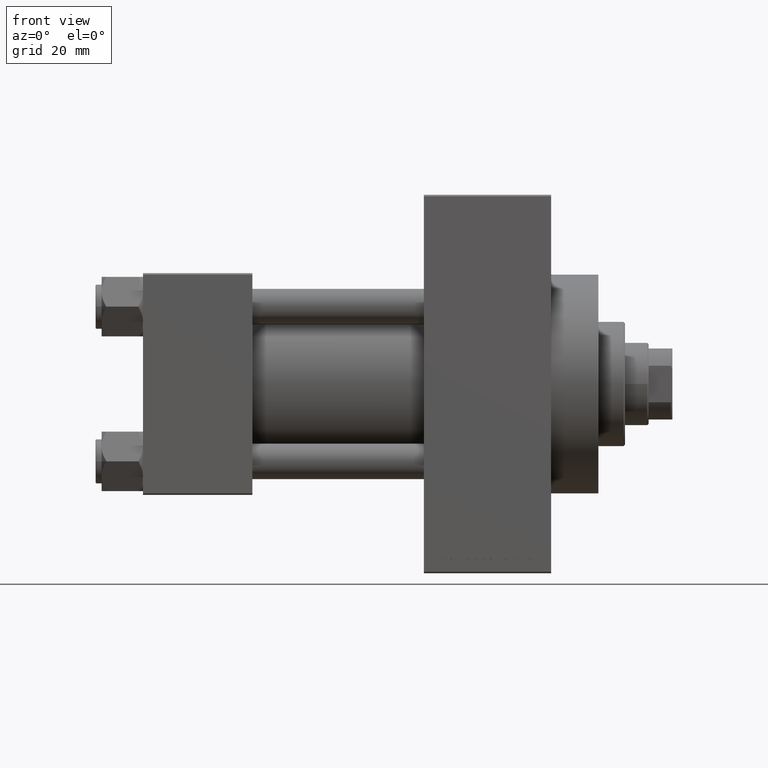
[diagram: clean part render]
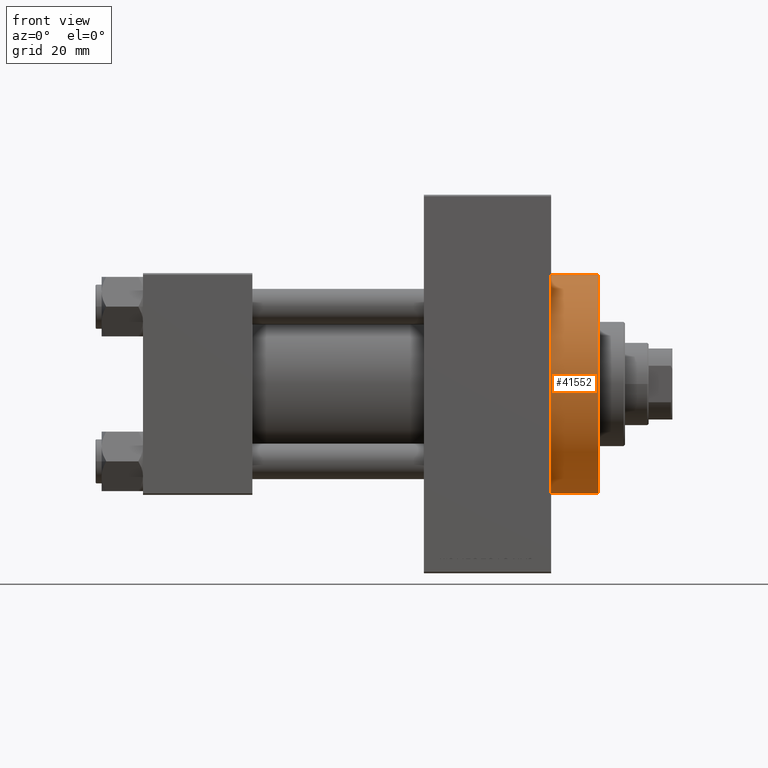
[diagram: same view with one face highlighted and labeled with its STEP entity id]
A machine part, front view. The second image highlights one B-rep face of the part: STEP entity #41552.
In plain terms, the highlighted cylindrical surface (partial cylindrical patch) has radius 37 mm, axis along (-1, -0, -0).
Its self-contained STEP definition (entity closure, byte-faithful):
#3933 = DIRECTION ( 'NONE',  ( 1.000000000000000000, 0.000000000000000000, 0.000000000000000000 ) ) ;
#4676 = CARTESIAN_POINT ( 'NONE',  ( 138.0000000000000000, 0.000000000000000000, 0.000000000000000000 ) ) ;
#8092 = ORIENTED_EDGE ( 'NONE', *, *, #11484, .F. ) ;
#8176 = VECTOR ( 'NONE', #14530, 1000.000000000000000 ) ;
#10052 = CIRCLE ( 'NONE', #17186, 37.00000000000000000 ) ;
#11484 = EDGE_CURVE ( 'NONE', #48938, #30682, #48340, .T. ) ;
#13146 = VERTEX_POINT ( 'NONE', #24506 ) ;
#13149 = CARTESIAN_POINT ( 'NONE',  ( 138.0000000000000000, 4.531193156845206793E-15, -37.00000000000000000 ) ) ;
#13638 = ORIENTED_EDGE ( 'NONE', *, *, #27136, .T. ) ;
#14186 = DIRECTION ( 'NONE',  ( -1.000000000000000000, -0.000000000000000000, -0.000000000000000000 ) ) ;
#14530 = DIRECTION ( 'NONE',  ( -1.000000000000000000, -0.000000000000000000, -0.000000000000000000 ) ) ;
#17020 = CARTESIAN_POINT ( 'NONE',  ( 154.0000000000000284, 0.000000000000000000, 37.00000000000000000 ) ) ;
#17186 = AXIS2_PLACEMENT_3D ( 'NONE', #20258, #35933, #20006 ) ;
#17269 = LINE ( 'NONE', #17020, #42423 ) ;
#18003 = CARTESIAN_POINT ( 'NONE',  ( 154.0000000000000284, 4.531193156845206793E-15, -37.00000000000000000 ) ) ;
#18157 = FACE_OUTER_BOUND ( 'NONE', #21960, .T. ) ;
#18304 = CARTESIAN_POINT ( 'NONE',  ( 138.0000000000000000, 0.000000000000000000, 37.00000000000000000 ) ) ;
#20006 = DIRECTION ( 'NONE',  ( 0.000000000000000000, 0.000000000000000000, -1.000000000000000000 ) ) ;
#20258 = CARTESIAN_POINT ( 'NONE',  ( 154.0000000000000284, 0.000000000000000000, 0.000000000000000000 ) ) ;
#21960 = EDGE_LOOP ( 'NONE', ( #8092, #40229, #13638, #44404 ) ) ;
#23706 = EDGE_CURVE ( 'NONE', #13146, #48938, #10052, .T. ) ;
#24506 = CARTESIAN_POINT ( 'NONE',  ( 154.0000000000000284, 0.000000000000000000, 37.00000000000000000 ) ) ;
#24558 = AXIS2_PLACEMENT_3D ( 'NONE', #25859, #14186, #37327 ) ;
#24958 = DIRECTION ( 'NONE',  ( -1.000000000000000000, -0.000000000000000000, -0.000000000000000000 ) ) ;
#25859 = CARTESIAN_POINT ( 'NONE',  ( 154.0000000000000284, 0.000000000000000000, 0.000000000000000000 ) ) ;
#27136 = EDGE_CURVE ( 'NONE', #13146, #34312, #17269, .T. ) ;
#30682 = VERTEX_POINT ( 'NONE', #13149 ) ;
#31528 = CARTESIAN_POINT ( 'NONE',  ( 154.0000000000000284, 4.531193156845206793E-15, -37.00000000000000000 ) ) ;
#32488 = CIRCLE ( 'NONE', #47557, 37.00000000000000000 ) ;
#34312 = VERTEX_POINT ( 'NONE', #18304 ) ;
#35933 = DIRECTION ( 'NONE',  ( 1.000000000000000000, 0.000000000000000000, 0.000000000000000000 ) ) ;
#37327 = DIRECTION ( 'NONE',  ( 0.000000000000000000, 0.000000000000000000, 1.000000000000000000 ) ) ;
#38225 = DIRECTION ( 'NONE',  ( 0.000000000000000000, 0.000000000000000000, -1.000000000000000000 ) ) ;
#40229 = ORIENTED_EDGE ( 'NONE', *, *, #23706, .F. ) ;
#41552 = ADVANCED_FACE ( 'NONE', ( #18157 ), #48497, .T. ) ;
#42059 = EDGE_CURVE ( 'NONE', #34312, #30682, #32488, .T. ) ;
#42423 = VECTOR ( 'NONE', #24958, 1000.000000000000000 ) ;
#44404 = ORIENTED_EDGE ( 'NONE', *, *, #42059, .T. ) ;
#47557 = AXIS2_PLACEMENT_3D ( 'NONE', #4676, #3933, #38225 ) ;
#48340 = LINE ( 'NONE', #18003, #8176 ) ;
#48497 = CYLINDRICAL_SURFACE ( 'NONE', #24558, 37.00000000000000000 ) ;
#48938 = VERTEX_POINT ( 'NONE', #31528 ) ;